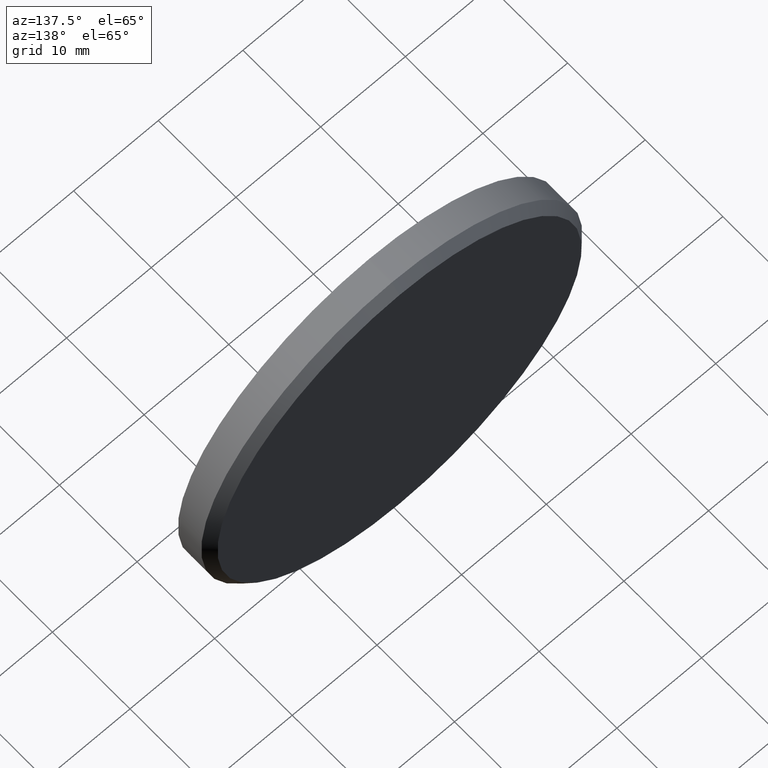
[diagram: clean part render]
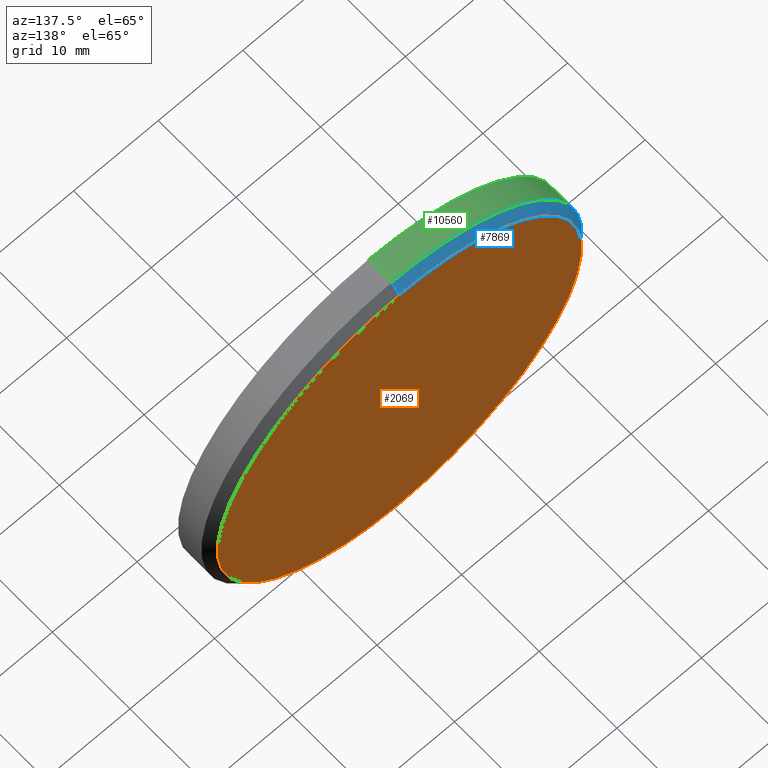
[diagram: same view with three faces highlighted in distinct colors, each labeled with its STEP entity id]
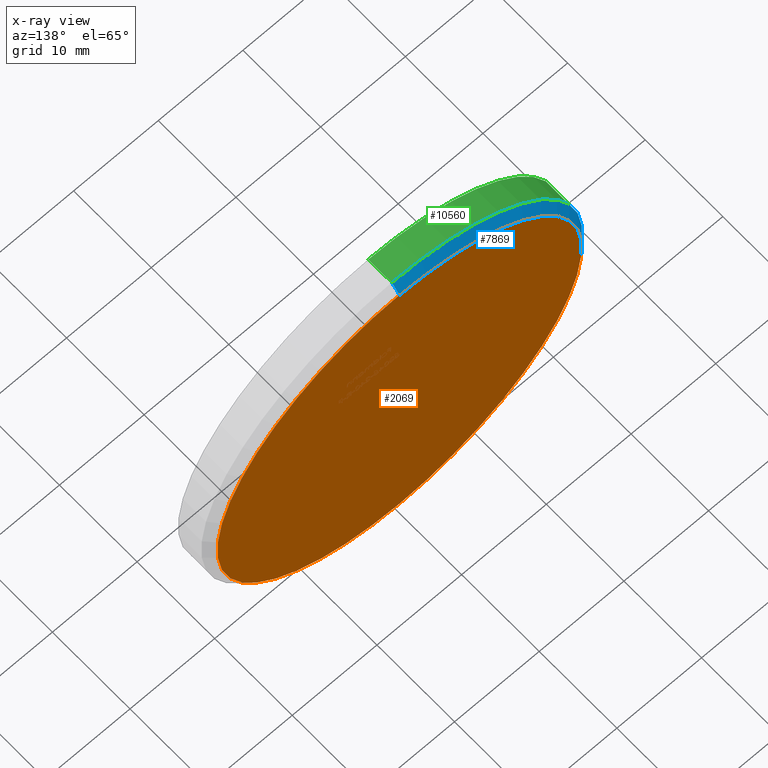
[diagram: x-ray of the same camera — body ghosted, the three highlighted faces saturated]
A machine part, auxiliary view with three faces highlighted in distinct colors.
The next image is the same camera in x-ray (body ghosted, the three faces saturated) — at least one of them is partly hidden behind the body in this view.
Their STEP definitions:

[orange] entity #2069 — the highlighted planar face has unit normal (0, 1, 0).
#133 = EDGE_CURVE ( 'NONE', #8876, #4189, #2468, .T. ) ;
#1532 = PLANE ( 'NONE',  #12155 ) ;
#2069 = ADVANCED_FACE ( 'NONE', ( #9840 ), #1532, .T. ) ;
#2183 = DIRECTION ( 'NONE',  ( 0.000000000000000000, 1.000000000000000000, 0.000000000000000000 ) ) ;
#2229 = CARTESIAN_POINT ( 'NONE',  ( 0.000000000000000000, 2.000000000000000000, 0.000000000000000000 ) ) ;
#2230 = EDGE_LOOP ( 'NONE', ( #13130, #6702 ) ) ;
#2468 = CIRCLE ( 'NONE', #4518, 21.49999999999999289 ) ;
#3472 = CARTESIAN_POINT ( 'NONE',  ( 2.694222958124176415E-15, 2.000000000000000000, 21.49999999999999289 ) ) ;
#4189 = VERTEX_POINT ( 'NONE', #5263 ) ;
#4518 = AXIS2_PLACEMENT_3D ( 'NONE', #9462, #10444, #6072 ) ;
#4982 = CARTESIAN_POINT ( 'NONE',  ( 0.000000000000000000, 2.000000000000000000, 0.000000000000000000 ) ) ;
#5263 = CARTESIAN_POINT ( 'NONE',  ( 0.000000000000000000, 2.000000000000000000, -21.49999999999999289 ) ) ;
#6072 = DIRECTION ( 'NONE',  ( 0.000000000000000000, 0.000000000000000000, 1.000000000000000000 ) ) ;
#6702 = ORIENTED_EDGE ( 'NONE', *, *, #133, .T. ) ;
#7906 = AXIS2_PLACEMENT_3D ( 'NONE', #2229, #2183, #11168 ) ;
#8876 = VERTEX_POINT ( 'NONE', #3472 ) ;
#9462 = CARTESIAN_POINT ( 'NONE',  ( 0.000000000000000000, 2.000000000000000000, 0.000000000000000000 ) ) ;
#9840 = FACE_OUTER_BOUND ( 'NONE', #2230, .T. ) ;
#10444 = DIRECTION ( 'NONE',  ( 0.000000000000000000, 1.000000000000000000, 0.000000000000000000 ) ) ;
#10536 = DIRECTION ( 'NONE',  ( 0.000000000000000000, -0.000000000000000000, 1.000000000000000000 ) ) ;
#11168 = DIRECTION ( 'NONE',  ( 0.000000000000000000, 0.000000000000000000, 1.000000000000000000 ) ) ;
#11735 = CIRCLE ( 'NONE', #7906, 21.49999999999999289 ) ;
#12155 = AXIS2_PLACEMENT_3D ( 'NONE', #4982, #13972, #10536 ) ;
#12985 = EDGE_CURVE ( 'NONE', #4189, #8876, #11735, .T. ) ;
#13130 = ORIENTED_EDGE ( 'NONE', *, *, #12985, .T. ) ;
#13972 = DIRECTION ( 'NONE',  ( 0.000000000000000000, 1.000000000000000000, 0.000000000000000000 ) ) ;

[blue] entity #7869 — the highlighted conical surface has half-angle 45 deg.
#30 = VERTEX_POINT ( 'NONE', #8925 ) ;
#601 = FACE_OUTER_BOUND ( 'NONE', #2195, .T. ) ;
#1132 = VECTOR ( 'NONE', #12255, 1000.000000000000000 ) ;
#1578 = CIRCLE ( 'NONE', #7638, 22.50000000000000355 ) ;
#1655 = ORIENTED_EDGE ( 'NONE', *, *, #2168, .F. ) ;
#1658 = CONICAL_SURFACE ( 'NONE', #10661, 21.49999999999999289, 0.7853981633974500554 ) ;
#2050 = DIRECTION ( 'NONE',  ( 0.000000000000000000, -1.000000000000000000, 0.000000000000000000 ) ) ;
#2168 = EDGE_CURVE ( 'NONE', #30, #11314, #1578, .T. ) ;
#2183 = DIRECTION ( 'NONE',  ( 0.000000000000000000, 1.000000000000000000, 0.000000000000000000 ) ) ;
#2195 = EDGE_LOOP ( 'NONE', ( #12339, #7214, #9354, #1655 ) ) ;
#2229 = CARTESIAN_POINT ( 'NONE',  ( 0.000000000000000000, 2.000000000000000000, 0.000000000000000000 ) ) ;
#2326 = CARTESIAN_POINT ( 'NONE',  ( 0.000000000000000000, 2.000000000000000000, -21.49999999999999289 ) ) ;
#2907 = DIRECTION ( 'NONE',  ( 0.000000000000000000, 0.000000000000000000, -1.000000000000000000 ) ) ;
#3133 = CARTESIAN_POINT ( 'NONE',  ( 0.000000000000000000, 0.9999999999999922284, 0.000000000000000000 ) ) ;
#3465 = DIRECTION ( 'NONE',  ( 0.000000000000000000, -0.7071067811865463515, -0.7071067811865487940 ) ) ;
#3472 = CARTESIAN_POINT ( 'NONE',  ( 2.694222958124176415E-15, 2.000000000000000000, 21.49999999999999289 ) ) ;
#4189 = VERTEX_POINT ( 'NONE', #5263 ) ;
#4759 = CARTESIAN_POINT ( 'NONE',  ( 0.000000000000000000, 0.9999999999999922284, -22.50000000000000355 ) ) ;
#5263 = CARTESIAN_POINT ( 'NONE',  ( 0.000000000000000000, 2.000000000000000000, -21.49999999999999289 ) ) ;
#6626 = EDGE_CURVE ( 'NONE', #4189, #11314, #12920, .T. ) ;
#7214 = ORIENTED_EDGE ( 'NONE', *, *, #12985, .F. ) ;
#7638 = AXIS2_PLACEMENT_3D ( 'NONE', #3133, #2050, #10996 ) ;
#7869 = ADVANCED_FACE ( 'NONE', ( #601 ), #1658, .T. ) ;
#7906 = AXIS2_PLACEMENT_3D ( 'NONE', #2229, #2183, #11168 ) ;
#8005 = EDGE_CURVE ( 'NONE', #8876, #30, #13251, .T. ) ;
#8876 = VERTEX_POINT ( 'NONE', #3472 ) ;
#8925 = CARTESIAN_POINT ( 'NONE',  ( 2.755455298081545172E-15, 0.9999999999999922284, 22.50000000000000355 ) ) ;
#9354 = ORIENTED_EDGE ( 'NONE', *, *, #6626, .T. ) ;
#9557 = DIRECTION ( 'NONE',  ( 0.000000000000000000, -1.000000000000000000, 0.000000000000000000 ) ) ;
#10645 = VECTOR ( 'NONE', #3465, 1000.000000000000000 ) ;
#10661 = AXIS2_PLACEMENT_3D ( 'NONE', #10683, #9557, #2907 ) ;
#10683 = CARTESIAN_POINT ( 'NONE',  ( 0.000000000000000000, 2.000000000000000000, 0.000000000000000000 ) ) ;
#10996 = DIRECTION ( 'NONE',  ( 0.000000000000000000, 0.000000000000000000, 1.000000000000000000 ) ) ;
#11123 = CARTESIAN_POINT ( 'NONE',  ( 2.632990618166808052E-15, 2.000000000000000000, 21.49999999999999289 ) ) ;
#11168 = DIRECTION ( 'NONE',  ( 0.000000000000000000, 0.000000000000000000, 1.000000000000000000 ) ) ;
#11314 = VERTEX_POINT ( 'NONE', #4759 ) ;
#11735 = CIRCLE ( 'NONE', #7906, 21.49999999999999289 ) ;
#12255 = DIRECTION ( 'NONE',  ( 8.659560562354950115E-17, -0.7071067811865463515, 0.7071067811865487940 ) ) ;
#12339 = ORIENTED_EDGE ( 'NONE', *, *, #8005, .F. ) ;
#12920 = LINE ( 'NONE', #2326, #10645 ) ;
#12985 = EDGE_CURVE ( 'NONE', #4189, #8876, #11735, .T. ) ;
#13251 = LINE ( 'NONE', #11123, #1132 ) ;

[green] entity #10560 — the highlighted cylindrical surface (partial cylindrical patch) has radius 22.5 mm, axis along (-0, -1, -0).
#30 = VERTEX_POINT ( 'NONE', #8925 ) ;
#313 = ORIENTED_EDGE ( 'NONE', *, *, #3910, .T. ) ;
#805 = CARTESIAN_POINT ( 'NONE',  ( 2.755455298081545172E-15, -2.000000000000000000, 22.50000000000000355 ) ) ;
#996 = DIRECTION ( 'NONE',  ( 0.000000000000000000, 0.000000000000000000, -1.000000000000000000 ) ) ;
#1578 = CIRCLE ( 'NONE', #7638, 22.50000000000000355 ) ;
#1901 = CIRCLE ( 'NONE', #4075, 22.50000000000000355 ) ;
#2050 = DIRECTION ( 'NONE',  ( 0.000000000000000000, -1.000000000000000000, 0.000000000000000000 ) ) ;
#2168 = EDGE_CURVE ( 'NONE', #30, #11314, #1578, .T. ) ;
#2533 = ORIENTED_EDGE ( 'NONE', *, *, #13112, .F. ) ;
#2544 = DIRECTION ( 'NONE',  ( 0.000000000000000000, 0.000000000000000000, 1.000000000000000000 ) ) ;
#3133 = CARTESIAN_POINT ( 'NONE',  ( 0.000000000000000000, 0.9999999999999922284, 0.000000000000000000 ) ) ;
#3910 = EDGE_CURVE ( 'NONE', #10049, #14089, #1901, .T. ) ;
#4075 = AXIS2_PLACEMENT_3D ( 'NONE', #13753, #12708, #2544 ) ;
#4210 = EDGE_LOOP ( 'NONE', ( #2533, #14161, #4973, #313 ) ) ;
#4252 = DIRECTION ( 'NONE',  ( -0.000000000000000000, -1.000000000000000000, -0.000000000000000000 ) ) ;
#4759 = CARTESIAN_POINT ( 'NONE',  ( 0.000000000000000000, 0.9999999999999922284, -22.50000000000000355 ) ) ;
#4973 = ORIENTED_EDGE ( 'NONE', *, *, #12845, .T. ) ;
#5088 = CARTESIAN_POINT ( 'NONE',  ( 0.000000000000000000, 2.000000000000000000, -22.50000000000000355 ) ) ;
#5379 = CARTESIAN_POINT ( 'NONE',  ( 0.000000000000000000, -2.000000000000000000, -22.50000000000000355 ) ) ;
#6324 = FACE_OUTER_BOUND ( 'NONE', #4210, .T. ) ;
#6818 = VECTOR ( 'NONE', #14016, 1000.000000000000000 ) ;
#7638 = AXIS2_PLACEMENT_3D ( 'NONE', #3133, #2050, #10996 ) ;
#7783 = CARTESIAN_POINT ( 'NONE',  ( 0.000000000000000000, 2.000000000000000000, 0.000000000000000000 ) ) ;
#8329 = CARTESIAN_POINT ( 'NONE',  ( 2.755455298081545172E-15, 2.000000000000000000, 22.50000000000000355 ) ) ;
#8748 = LINE ( 'NONE', #8329, #6818 ) ;
#8924 = VECTOR ( 'NONE', #9652, 1000.000000000000000 ) ;
#8925 = CARTESIAN_POINT ( 'NONE',  ( 2.755455298081545172E-15, 0.9999999999999922284, 22.50000000000000355 ) ) ;
#9652 = DIRECTION ( 'NONE',  ( -0.000000000000000000, -1.000000000000000000, -0.000000000000000000 ) ) ;
#10016 = AXIS2_PLACEMENT_3D ( 'NONE', #7783, #4252, #996 ) ;
#10049 = VERTEX_POINT ( 'NONE', #5379 ) ;
#10560 = ADVANCED_FACE ( 'NONE', ( #6324 ), #13003, .T. ) ;
#10996 = DIRECTION ( 'NONE',  ( 0.000000000000000000, 0.000000000000000000, 1.000000000000000000 ) ) ;
#11314 = VERTEX_POINT ( 'NONE', #4759 ) ;
#12708 = DIRECTION ( 'NONE',  ( 0.000000000000000000, 1.000000000000000000, 0.000000000000000000 ) ) ;
#12845 = EDGE_CURVE ( 'NONE', #11314, #10049, #13306, .T. ) ;
#13003 = CYLINDRICAL_SURFACE ( 'NONE', #10016, 22.50000000000000355 ) ;
#13112 = EDGE_CURVE ( 'NONE', #30, #14089, #8748, .T. ) ;
#13306 = LINE ( 'NONE', #5088, #8924 ) ;
#13753 = CARTESIAN_POINT ( 'NONE',  ( 0.000000000000000000, -2.000000000000000000, 0.000000000000000000 ) ) ;
#14016 = DIRECTION ( 'NONE',  ( -0.000000000000000000, -1.000000000000000000, -0.000000000000000000 ) ) ;
#14089 = VERTEX_POINT ( 'NONE', #805 ) ;
#14161 = ORIENTED_EDGE ( 'NONE', *, *, #2168, .T. ) ;